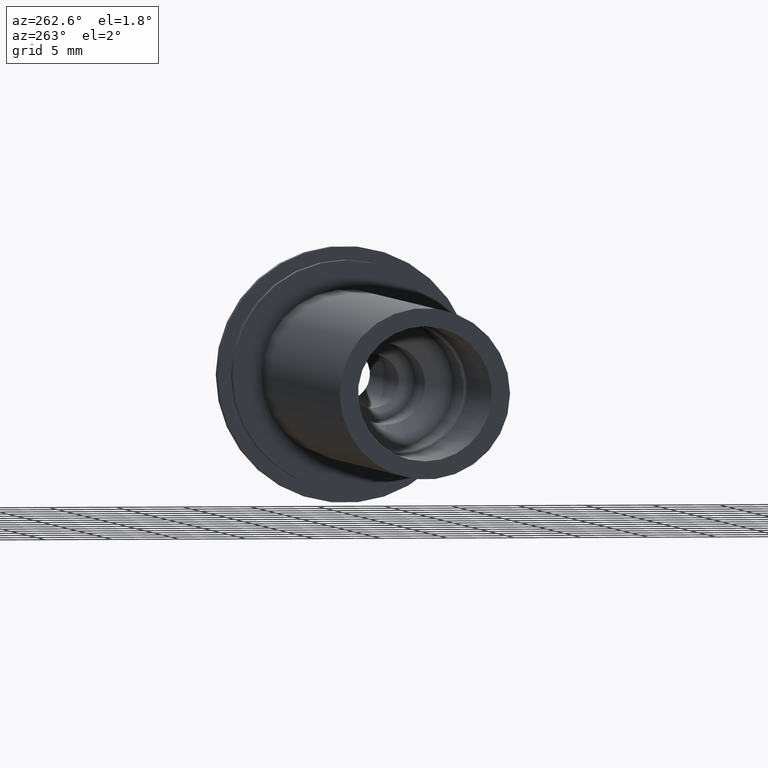
[diagram: clean part render]
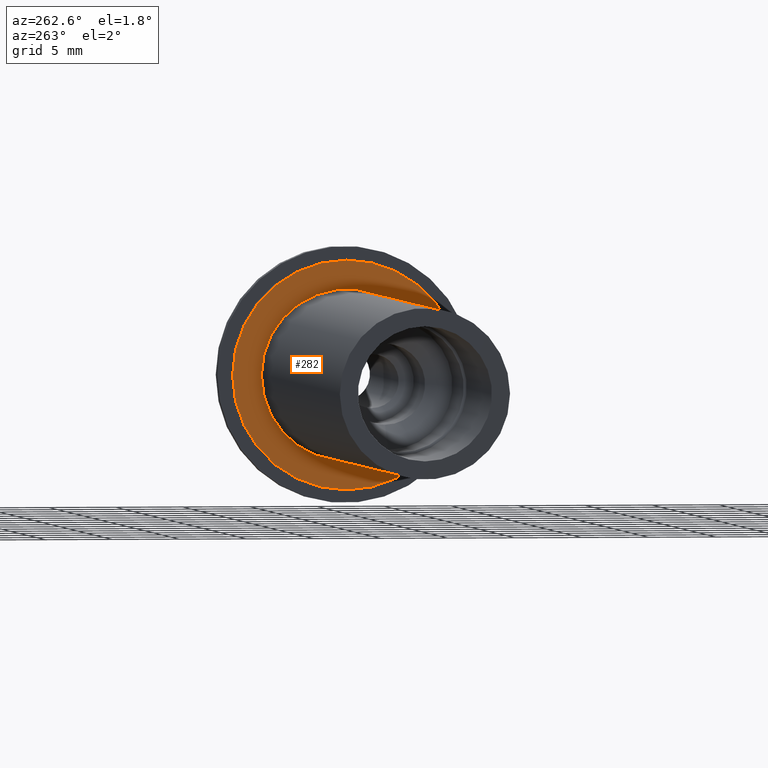
[diagram: same view with one face highlighted and labeled with its STEP entity id]
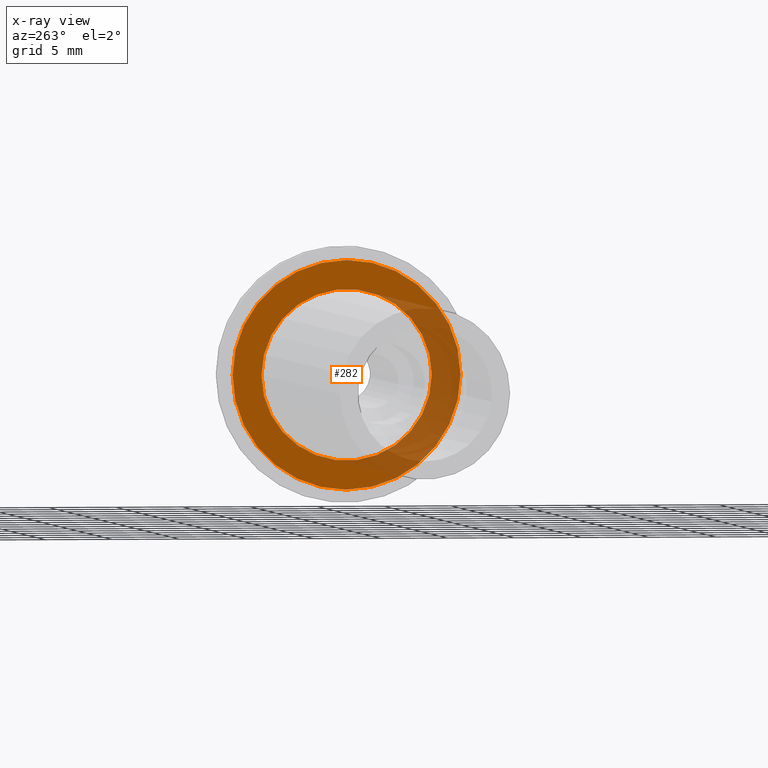
[diagram: x-ray of the same camera — body ghosted, the highlighted face saturated]
A machine part, auxiliary view. The second image highlights one B-rep face of the part: STEP entity #282.
The next image is the same camera in x-ray: the body ghosted, the highlighted face saturated — about 33% of this face is hidden behind the body in this view.
In plain terms, the highlighted planar face has unit normal (-1, 0, 0).
Its self-contained STEP definition (entity closure, byte-faithful):
#94=FACE_BOUND('',#132,.T.);
#98=PLANE('',#333);
#114=FACE_OUTER_BOUND('',#131,.T.);
#131=EDGE_LOOP('',(#257));
#132=EDGE_LOOP('',(#258));
#167=CIRCLE('',#332,6.35);
#168=CIRCLE('',#334,8.5);
#186=VERTEX_POINT('',#504);
#187=VERTEX_POINT('',#508);
#209=EDGE_CURVE('',#186,#186,#167,.T.);
#211=EDGE_CURVE('',#187,#187,#168,.T.);
#257=ORIENTED_EDGE('',*,*,#211,.F.);
#258=ORIENTED_EDGE('',*,*,#209,.T.);
#282=ADVANCED_FACE('',(#114,#94),#98,.T.);
#332=AXIS2_PLACEMENT_3D('',#505,#413,#414);
#333=AXIS2_PLACEMENT_3D('',#507,#416,#417);
#334=AXIS2_PLACEMENT_3D('',#509,#418,#419);
#413=DIRECTION('center_axis',(1.,0.,0.));
#414=DIRECTION('ref_axis',(0.,0.,-1.));
#416=DIRECTION('center_axis',(-1.,0.,0.));
#417=DIRECTION('ref_axis',(0.,0.,1.));
#418=DIRECTION('center_axis',(1.,0.,0.));
#419=DIRECTION('ref_axis',(0.,0.,-1.));
#504=CARTESIAN_POINT('',(-2.,-6.35,-7.7765071745857E-16));
#505=CARTESIAN_POINT('Origin',(-2.,0.,0.));
#507=CARTESIAN_POINT('Origin',(-2.,8.5,0.));
#508=CARTESIAN_POINT('',(-2.,-8.5,-1.04094977927525E-15));
#509=CARTESIAN_POINT('Origin',(-2.,0.,0.));